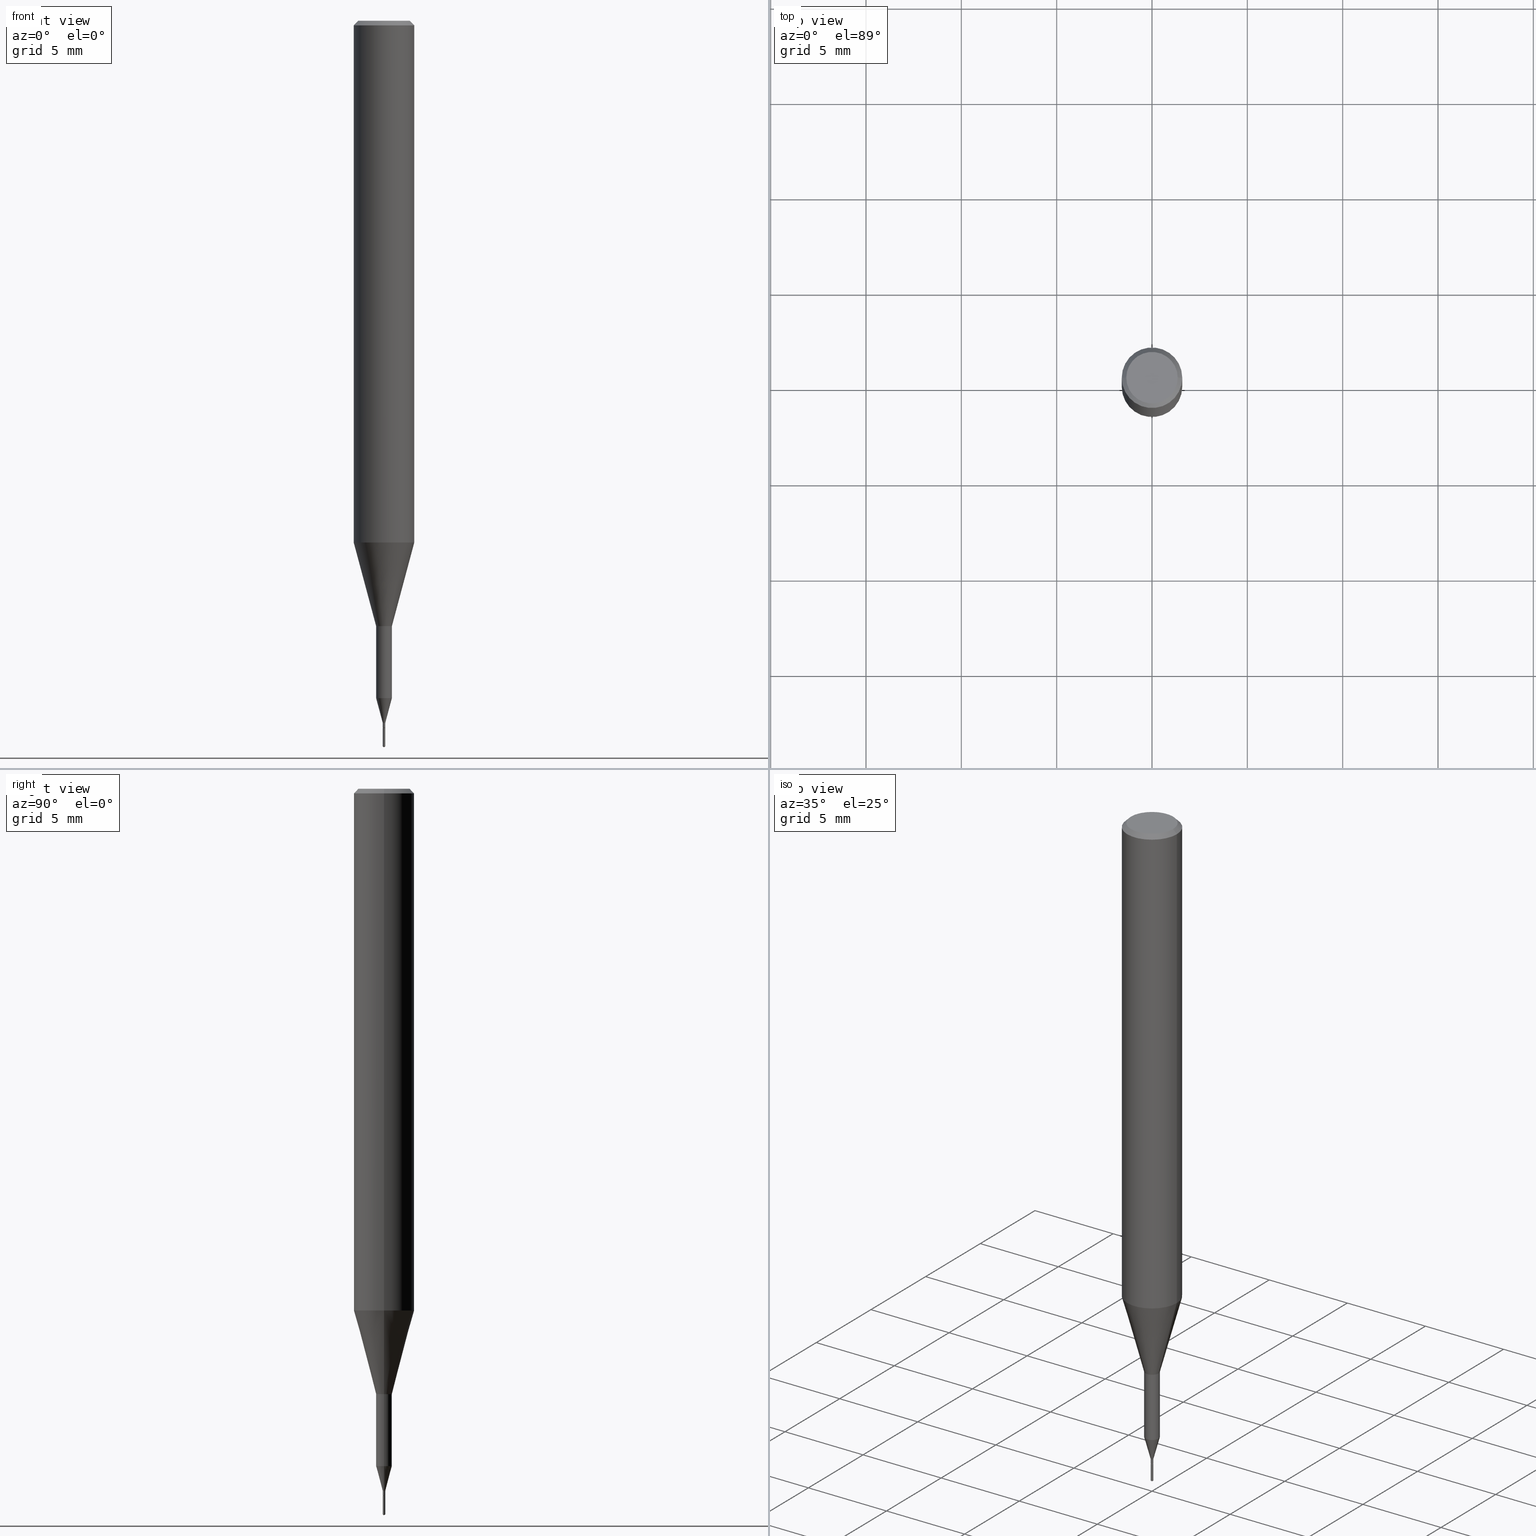
[diagram: canonical four-view strip — front | top / right | iso, engineering-drawing reading convention]
A machine part, canonical four-view strip (front | top / right | iso — engineering-drawing reading convention). The complete STEP part file that produces these views, byte-faithful:
ISO-10303-21;
HEADER;
FILE_DESCRIPTION (( 'STEP AP203' ),
    '1' );
FILE_NAME ('07066.STEP',
    '2024-04-19T13:29:27',
    ( '' ),
    ( '' ),
    'SwSTEP 2.0',
    'SolidWorks 2023',
    '' );
FILE_SCHEMA (( 'CONFIG_CONTROL_DESIGN' ));
ENDSEC;

DATA;
#1 = CIRCLE ( 'NONE', #228, 0.01625000000000000056 ) ;
#2 = CARTESIAN_POINT ( 'NONE',  ( 1.776356839403819481E-17, 0.002499999999994900832, -1.459999999999999964 ) ) ;
#3 = DIRECTION ( 'NONE',  ( -2.445468806185136597E-29, 3.491481338843145583E-15, 1.000000000000000000 ) ) ;
#4 = APPLICATION_PROTOCOL_DEFINITION ( 'international standard', 'config_control_design', 1994, #198 ) ;
#5 = ADVANCED_FACE ( 'NONE', ( #410 ), #317, .F. ) ;
#6 = VERTEX_POINT ( 'NONE', #547 ) ;
#7 = FACE_OUTER_BOUND ( 'NONE', #234, .T. ) ;
#8 = VERTEX_POINT ( 'NONE', #331 ) ;
#9 = CONICAL_SURFACE ( 'NONE', #120, 0.01625000000000000056, 0.2617993877991492413 ) ;
#10 = AXIS2_PLACEMENT_3D ( 'NONE', #489, #544, #63 ) ;
#11 = ADVANCED_FACE ( 'NONE', ( #144 ), #503, .F. ) ;
#12 = AXIS2_PLACEMENT_3D ( 'NONE', #341, #251, #564 ) ;
#13 = ORIENTED_EDGE ( 'NONE', *, *, #143, .F. ) ;
#14 = DATE_AND_TIME ( #197, #347 ) ;
#15 = DIRECTION ( 'NONE',  ( -2.445468806185136877E-29, 3.491481338843145188E-15, 1.000000000000000000 ) ) ;
#16 = AXIS2_PLACEMENT_3D ( 'NONE', #48, #491, #235 ) ;
#17 = EDGE_CURVE ( 'NONE', #294, #409, #252, .T. ) ;
#18 = DIRECTION ( 'NONE',  ( 1.000000000000000000, -6.982962677686336130E-15, 0.000000000000000000 ) ) ;
#19 = DIRECTION ( 'NONE',  ( 0.2588190451025205729, 1.565188264969628081E-15, 0.9659258262890684232 ) ) ;
#20 = DIRECTION ( 'NONE',  ( 0.2588190451025214611, 1.565188264969621573E-15, 0.9659258262890682012 ) ) ;
#21 = CARTESIAN_POINT ( 'NONE',  ( 3.570384457030299835E-29, -5.097562754710993158E-15, -1.459999999999999964 ) ) ;
#22 = COORDINATED_UNIVERSAL_TIME_OFFSET ( 5, 0, .BEHIND. ) ;
#23 = CARTESIAN_POINT ( 'NONE',  ( 3.420438828764592188E-29, -4.883480137256745077E-15, -1.398684301395928253 ) ) ;
#24 = EDGE_CURVE ( 'NONE', #319, #6, #567, .T. ) ;
#25 = VECTOR ( 'NONE', #26, 39.37007874015748854 ) ;
#26 = DIRECTION ( 'NONE',  ( 0.7071067811865454633, -7.319954787623246579E-15, -0.7071067811865493491 ) ) ;
#27 = LOCAL_TIME ( 9, 29, 27.00000000000000000, #420 ) ;
#28 = EDGE_CURVE ( 'NONE', #324, #279, #70, .T. ) ;
#29 = AXIS2_PLACEMENT_3D ( 'NONE', #349, #117, #342 ) ;
#30 = PERSON_AND_ORGANIZATION ( #326, #506 ) ;
#31 = VERTEX_POINT ( 'NONE', #81 ) ;
#32 = CARTESIAN_POINT ( 'NONE',  ( 3.570384457030299835E-29, -5.097562754710993158E-15, -1.459999999999999964 ) ) ;
#33 = CARTESIAN_POINT ( 'NONE',  ( 0.01625000000000000056, -4.996953280769146753E-15, -1.398684301395928253 ) ) ;
#34 = APPLICATION_PROTOCOL_DEFINITION ( 'international standard', 'config_control_design', 1994, #60 ) ;
#35 = LINE ( 'NONE', #539, #403 ) ;
#36 = ADVANCED_FACE ( 'NONE', ( #431 ), #213, .T. ) ;
#37 = DIRECTION ( 'NONE',  ( -2.445468806185136877E-29, 3.491481338843145188E-15, 1.000000000000000000 ) ) ;
#38 = AXIS2_PLACEMENT_3D ( 'NONE', #78, #350, #401 ) ;
#39 = ORIENTED_EDGE ( 'NONE', *, *, #455, .F. ) ;
#40 = CIRCLE ( 'NONE', #257, 0.002500000000000002220 ) ;
#41 = EDGE_CURVE ( 'NONE', #449, #8, #142, .T. ) ;
#42 = CARTESIAN_POINT ( 'NONE',  ( 3.644987076119493180E-29, -5.270468832327515999E-15, -1.500000000000000222 ) ) ;
#43 = ORIENTED_EDGE ( 'NONE', *, *, #28, .F. ) ;
#44 = EDGE_LOOP ( 'NONE', ( #454, #416 ) ) ;
#45 = LINE ( 'NONE', #412, #360 ) ;
#46 = COORDINATED_UNIVERSAL_TIME_OFFSET ( 5, 0, .BEHIND. ) ;
#47 = ORIENTED_EDGE ( 'NONE', *, *, #96, .T. ) ;
#48 = CARTESIAN_POINT ( 'NONE',  ( 2.292627005798580623E-31, -3.273263755165470184E-17, -0.009375000000000060368 ) ) ;
#49 = CC_DESIGN_PERSON_AND_ORGANIZATION_ASSIGNMENT ( #30, #214, ( #67 ) ) ;
#50 = ORIENTED_EDGE ( 'NONE', *, *, #154, .T. ) ;
#51 = CC_DESIGN_APPROVAL ( #56, ( #67 ) ) ;
#52 = VERTEX_POINT ( 'NONE', #124 ) ;
#53 = FACE_OUTER_BOUND ( 'NONE', #169, .T. ) ;
#54 = ORIENTED_EDGE ( 'NONE', *, *, #581, .T. ) ;
#55 = VERTEX_POINT ( 'NONE', #390 ) ;
#56 = APPROVAL ( #414, 'UNSPECIFIED' ) ;
#57 = EDGE_CURVE ( 'NONE', #409, #283, #205, .T. ) ;
#58 = DIRECTION ( 'NONE',  ( 1.000000000000000000, -6.982962677686267499E-15, 4.876176775795935793E-29 ) ) ;
#59 = EDGE_LOOP ( 'NONE', ( #582, #512, #590, #281 ) ) ;
#60 = APPLICATION_CONTEXT ( 'configuration controlled 3d designs of mechanical parts and assemblies' ) ;
#61 = VECTOR ( 'NONE', #185, 39.37007874015748143 ) ;
#62 = APPROVAL_PERSON_ORGANIZATION ( #466, #336, #299 ) ;
#63 = DIRECTION ( 'NONE',  ( 1.000000000000000000, -6.982962677686336130E-15, 0.000000000000000000 ) ) ;
#64 = AXIS2_PLACEMENT_3D ( 'NONE', #440, #391, #476 ) ;
#65 = FACE_OUTER_BOUND ( 'NONE', #172, .T. ) ;
#66 = ORIENTED_EDGE ( 'NONE', *, *, #163, .T. ) ;
#67 = PRODUCT_DEFINITION ( 'UNKNOWN', '', #291, #437 ) ;
#68 = EDGE_LOOP ( 'NONE', ( #195, #402, #313, #577 ) ) ;
#69 = EDGE_CURVE ( 'NONE', #270, #181, #40, .T. ) ;
#70 = LINE ( 'NONE', #357, #507 ) ;
#71 = CARTESIAN_POINT ( 'NONE',  ( 1.415359278996747967E-46, -2.020757941330909984E-32, -5.787680772770392401E-18 ) ) ;
#72 = VECTOR ( 'NONE', #530, 39.37007874015748143 ) ;
#73 = FACE_OUTER_BOUND ( 'NONE', #378, .T. ) ;
#74 = CARTESIAN_POINT ( 'NONE',  ( -1.745740669417899769E-17, -0.002500000000005228942, -1.498497848452431169 ) ) ;
#75 = PERSON_AND_ORGANIZATION ( #326, #506 ) ;
#76 = CC_DESIGN_PERSON_AND_ORGANIZATION_ASSIGNMENT ( #481, #501, ( #291 ) ) ;
#77 = CARTESIAN_POINT ( 'NONE',  ( -0.002500000000000021736, 1.776356839400265909E-17, -1.229733772563737297E-31 ) ) ;
#78 = CARTESIAN_POINT ( 'NONE',  ( 7.076796394983739835E-47, -1.010378970665454992E-32, -2.893840386385196200E-18 ) ) ;
#79 = CALENDAR_DATE ( 2024, 19, 4 ) ;
#80 = DIRECTION ( 'NONE',  ( 1.000000000000000000, -6.982962677686266711E-15, 4.875930095424100059E-29 ) ) ;
#81 = CARTESIAN_POINT ( 'NONE',  ( -0.01625000000000000056, -4.768016942695728892E-15, -1.398684301395928253 ) ) ;
#82 = CIRCLE ( 'NONE', #106, 0.01625000000000000056 ) ;
#83 = ORIENTED_EDGE ( 'NONE', *, *, #579, .F. ) ;
#84 = PERSON_AND_ORGANIZATION ( #326, #506 ) ;
#85 = ADVANCED_FACE ( 'NONE', ( #158 ), #9, .T. ) ;
#86 = CARTESIAN_POINT ( 'NONE',  ( -0.06250000000000000000, 4.037025298037369984E-16, -0.009375000000000060368 ) ) ;
#87 = PRODUCT ( '07066', '07066', '', ( #545 ) ) ;
#88 = DIRECTION ( 'NONE',  ( 1.000000000000000000, -6.982962677686265922E-15, 4.876176775795935232E-29 ) ) ;
#89 = DIRECTION ( 'NONE',  ( -2.461818195733173075E-29, 3.468068082460894112E-15, 1.000000000000000000 ) ) ;
#90 = AXIS2_PLACEMENT_3D ( 'NONE', #418, #3, #332 ) ;
#91 = ORIENTED_EDGE ( 'NONE', *, *, #467, .F. ) ;
#92 = CYLINDRICAL_SURFACE ( 'NONE', #557, 0.002500000000000021736 ) ;
#93 = PERSON_AND_ORGANIZATION ( #326, #506 ) ;
#94 = EDGE_LOOP ( 'NONE', ( #108, #460, #532, #521 ) ) ;
#95 = ORIENTED_EDGE ( 'NONE', *, *, #290, .F. ) ;
#96 = EDGE_CURVE ( 'NONE', #552, #31, #82, .T. ) ;
#97 = CARTESIAN_POINT ( 'NONE',  ( -0.001999999999999999174, -5.083351899995791142E-15, -1.459999999999999964 ) ) ;
#98 = ADVANCED_FACE ( 'NONE', ( #73 ), #451, .T. ) ;
#99 = SECURITY_CLASSIFICATION_LEVEL ( 'unclassified' ) ;
#100 = ORIENTED_EDGE ( 'NONE', *, *, #514, .T. ) ;
#101 = CARTESIAN_POINT ( 'NONE',  ( 3.570384457030299835E-29, -5.097562754710993158E-15, -1.459999999999999964 ) ) ;
#102 = DIRECTION ( 'NONE',  ( -2.461818195733173075E-29, 3.468068082460893717E-15, 1.000000000000000000 ) ) ;
#103 = ORIENTED_EDGE ( 'NONE', *, *, #424, .T. ) ;
#104 = CIRCLE ( 'NONE', #10, 0.001999999999999999174 ) ;
#105 = ORIENTED_EDGE ( 'NONE', *, *, #69, .F. ) ;
#106 = AXIS2_PLACEMENT_3D ( 'NONE', #23, #206, #569 ) ;
#107 = EDGE_CURVE ( 'NONE', #324, #546, #200, .T. ) ;
#108 = ORIENTED_EDGE ( 'NONE', *, *, #203, .F. ) ;
#109 = CARTESIAN_POINT ( 'NONE',  ( 0.000000000000000000, 0.000000000000000000, 0.000000000000000000 ) ) ;
#110 = VERTEX_POINT ( 'NONE', #436 ) ;
#111 = ORIENTED_EDGE ( 'NONE', *, *, #17, .T. ) ;
#112 = AXIS2_PLACEMENT_3D ( 'NONE', #354, #225, #315 ) ;
#113 = ORIENTED_EDGE ( 'NONE', *, *, #375, .F. ) ;
#114 = EDGE_CURVE ( 'NONE', #546, #324, #556, .T. ) ;
#115 = CARTESIAN_POINT ( 'NONE',  ( 3.056836007731421306E-29, -4.364351673553932471E-15, -1.250000000000000000 ) ) ;
#116 = DIRECTION ( 'NONE',  ( -2.445468806185136597E-29, 3.491481338843145583E-15, 1.000000000000000000 ) ) ;
#117 = DIRECTION ( 'NONE',  ( -2.445468806185136597E-29, 3.491481338843145583E-15, 1.000000000000000000 ) ) ;
#118 = AXIS2_PLACEMENT_3D ( 'NONE', #21, #392, #397 ) ;
#119 = CARTESIAN_POINT ( 'NONE',  ( 0.002500000000000002220, -5.113274420735787479E-15, -1.459500000000000020 ) ) ;
#120 = AXIS2_PLACEMENT_3D ( 'NONE', #434, #473, #400 ) ;
#121 = ADVANCED_FACE ( 'NONE', ( #303 ), #427, .T. ) ;
#122 = CARTESIAN_POINT ( 'NONE',  ( 2.292627005798580623E-31, -3.273263755165470184E-17, -0.009375000000000060368 ) ) ;
#123 = CARTESIAN_POINT ( 'NONE',  ( -0.001999999999999999174, -5.080702672821679941E-15, -1.459999999999999964 ) ) ;
#124 = CARTESIAN_POINT ( 'NONE',  ( 3.692727293599759753E-29, -5.202102123691340773E-15, -1.500000000000000222 ) ) ;
#125 = DIRECTION ( 'NONE',  ( 1.000000000000000000, -6.982962677686264344E-15, 0.000000000000000000 ) ) ;
#126 = EDGE_LOOP ( 'NONE', ( #179, #180, #513, #140 ) ) ;
#127 = LENGTH_MEASURE_WITH_UNIT ( LENGTH_MEASURE( 0.02539999999999999897 ), #355 );
#128 = CARTESIAN_POINT ( 'NONE',  ( 3.569161722627207033E-29, -5.095817014041571654E-15, -1.459500000000000020 ) ) ;
#129 = CIRCLE ( 'NONE', #555, 0.05312499999999999861 ) ;
#130 = FACE_OUTER_BOUND ( 'NONE', #498, .T. ) ;
#131 = CC_DESIGN_APPROVAL ( #533, ( #291 ) ) ;
#132 = CIRCLE ( 'NONE', #465, 0.002499999999999997884 ) ;
#133 = CYLINDRICAL_SURFACE ( 'NONE', #112, 0.06250000000000006939 ) ;
#134 = ORIENTED_EDGE ( 'NONE', *, *, #542, .F. ) ;
#135 = DIRECTION ( 'NONE',  ( -0.7071067811866210695, 7.493145998870619217E-15, 0.7071067811864739650 ) ) ;
#136 = EDGE_LOOP ( 'NONE', ( #554, #468, #325, #43 ) ) ;
#137 = CARTESIAN_POINT ( 'NONE',  ( -0.002500000000000002220, -5.078053445647568740E-15, -1.459500000000000020 ) ) ;
#138 = DIRECTION ( 'NONE',  ( 1.000000000000000000, -6.982962677686265922E-15, 4.876176775795935232E-29 ) ) ;
#139 = APPROVAL_DATE_TIME ( #223, #56 ) ;
#140 = ORIENTED_EDGE ( 'NONE', *, *, #57, .T. ) ;
#141 = EDGE_LOOP ( 'NONE', ( #573, #66, #13, #446 ) ) ;
#142 = CIRCLE ( 'NONE', #305, 0.002499999999999998751 ) ;
#143 = EDGE_CURVE ( 'NONE', #110, #519, #153, .T. ) ;
#144 = FACE_OUTER_BOUND ( 'NONE', #439, .T. ) ;
#145 = DIRECTION ( 'NONE',  ( -2.445468806185136597E-29, 3.491481338843145583E-15, 1.000000000000000000 ) ) ;
#146 = APPROVAL_ROLE ( '' ) ;
#147 = ORIENTED_EDGE ( 'NONE', *, *, #375, .T. ) ;
#148 = CYLINDRICAL_SURFACE ( 'NONE', #477, 0.002499999999999998317 ) ;
#149 = EDGE_LOOP ( 'NONE', ( #39, #147, #287 ) ) ;
#150 = CARTESIAN_POINT ( 'NONE',  ( 3.570384457030299835E-29, -5.097562754710993158E-15, -1.459999999999999964 ) ) ;
#151 = SHAPE_DEFINITION_REPRESENTATION ( #376, #209 ) ;
#152 = ORIENTED_EDGE ( 'NONE', *, *, #41, .F. ) ;
#153 = CIRCLE ( 'NONE', #517, 0.002500000000000041685 ) ;
#154 = EDGE_CURVE ( 'NONE', #55, #270, #353, .T. ) ;
#155 = LINE ( 'NONE', #2, #215 ) ;
#156 = AXIS2_PLACEMENT_3D ( 'NONE', #548, #102, #500 ) ;
#157 = CIRCLE ( 'NONE', #298, 0.002500000000000041685 ) ;
#158 = FACE_OUTER_BOUND ( 'NONE', #94, .T. ) ;
#159 = ORIENTED_EDGE ( 'NONE', *, *, #343, .T. ) ;
#160 = CARTESIAN_POINT ( 'NONE',  ( 1.415359278996747967E-46, -2.020757941330909984E-32, -5.787680772770392401E-18 ) ) ;
#161 = DIRECTION ( 'NONE',  ( 1.000000000000000000, -6.982962677686410283E-15, 0.000000000000000000 ) ) ;
#162 = CARTESIAN_POINT ( 'NONE',  ( 0.06250000000000012490, -4.198131499960668153E-15, -1.077392650149939346 ) ) ;
#163 = EDGE_CURVE ( 'NONE', #181, #519, #479, .T. ) ;
#164 = DIRECTION ( 'NONE',  ( 0.7071067811866210695, -2.468850131083026989E-15, 0.7071067811864739650 ) ) ;
#165 = CIRCLE ( 'NONE', #487, 0.06250000000000012490 ) ;
#166 = CALENDAR_DATE ( 2024, 19, 4 ) ;
#167 = CYLINDRICAL_SURFACE ( 'NONE', #280, 0.01625000000000000056 ) ;
#168 = DIRECTION ( 'NONE',  ( -2.461818195733173075E-29, 3.468068082460893717E-15, 1.000000000000000000 ) ) ;
#169 = EDGE_LOOP ( 'NONE', ( #47, #54, #550, #91 ) ) ;
#170 = CARTESIAN_POINT ( 'NONE',  ( 3.545929768968448850E-29, -5.062647941322561509E-15, -1.450000000000000178 ) ) ;
#171 = DIRECTION ( 'NONE',  ( 1.000000000000000000, -6.982962677686410283E-15, 0.000000000000000000 ) ) ;
#172 = EDGE_LOOP ( 'NONE', ( #540, #583, #421, #302 ) ) ;
#173 = ADVANCED_FACE ( 'NONE', ( #216 ), #167, .T. ) ;
#174 = VECTOR ( 'NONE', #524, 39.37007874015747433 ) ;
#175 = CARTESIAN_POINT ( 'NONE',  ( 3.570384457030299835E-29, -5.097562754710993158E-15, -1.459999999999999964 ) ) ;
#176 = CARTESIAN_POINT ( 'NONE',  ( 3.665159160847072839E-29, -5.231075914172285072E-15, -1.498497848452431169 ) ) ;
#177 = AXIS2_PLACEMENT_3D ( 'NONE', #388, #344, #560 ) ;
#178 = LINE ( 'NONE', #461, #199 ) ;
#179 = ORIENTED_EDGE ( 'NONE', *, *, #311, .F. ) ;
#180 = ORIENTED_EDGE ( 'NONE', *, *, #356, .F. ) ;
#181 = VERTEX_POINT ( 'NONE', #137 ) ;
#182 = LINE ( 'NONE', #86, #393 ) ;
#183 = CC_DESIGN_DATE_AND_TIME_ASSIGNMENT ( #588, #352, ( #67 ) ) ;
#184 = ORIENTED_EDGE ( 'NONE', *, *, #24, .F. ) ;
#185 = DIRECTION ( 'NONE',  ( -2.445468806185136877E-29, 3.491481338843145188E-15, 1.000000000000000000 ) ) ;
#186 = DIRECTION ( 'NONE',  ( -2.445468806185136877E-29, 3.491481338843145188E-15, 1.000000000000000000 ) ) ;
#187 = CONICAL_SURFACE ( 'NONE', #492, 0.06250000000000012490, 0.2617993877991501295 ) ;
#188 = ORIENTED_EDGE ( 'NONE', *, *, #508, .T. ) ;
#189 = AXIS2_PLACEMENT_3D ( 'NONE', #32, #258, #18 ) ;
#190 = CARTESIAN_POINT ( 'NONE',  ( -0.06250000000000000000, -1.453125275228401137E-15, -0.009375000000000060368 ) ) ;
#191 = EDGE_LOOP ( 'NONE', ( #329, #381, #152, #239 ) ) ;
#192 = CC_DESIGN_DATE_AND_TIME_ASSIGNMENT ( #219, #380, ( #361 ) ) ;
#193 = DIRECTION ( 'NONE',  ( -2.445468806185136597E-29, 3.491481338843145583E-15, 1.000000000000000000 ) ) ;
#194 = COORDINATED_UNIVERSAL_TIME_OFFSET ( 5, 0, .BEHIND. ) ;
#195 = ORIENTED_EDGE ( 'NONE', *, *, #581, .F. ) ;
#196 = CARTESIAN_POINT ( 'NONE',  ( 0.01625000000000000056, -4.996953280769146753E-15, -1.398684301395928253 ) ) ;
#197 = CALENDAR_DATE ( 2024, 19, 4 ) ;
#198 = APPLICATION_CONTEXT ( 'configuration controlled 3d designs of mechanical parts and assemblies' ) ;
#199 = VECTOR ( 'NONE', #37, 39.37007874015748143 ) ;
#200 = CIRCLE ( 'NONE', #29, 0.01624999999999999709 ) ;
#201 = ORIENTED_EDGE ( 'NONE', *, *, #430, .F. ) ;
#202 = DIRECTION ( 'NONE',  ( -2.445468806185136597E-29, 3.491481338843145583E-15, 1.000000000000000000 ) ) ;
#203 = EDGE_CURVE ( 'NONE', #519, #31, #274, .T. ) ;
#204 = CARTESIAN_POINT ( 'NONE',  ( -0.05312499999999999861, 3.873362110279099094E-16, -5.787680772773044021E-18 ) ) ;
#205 = CIRCLE ( 'NONE', #395, 0.06250000000000000000 ) ;
#206 = DIRECTION ( 'NONE',  ( -2.445468806185136597E-29, 3.491481338843145583E-15, 1.000000000000000000 ) ) ;
#207 = EDGE_LOOP ( 'NONE', ( #134, #374 ) ) ;
#208 = DIRECTION ( 'NONE',  ( -2.445468806185136597E-29, 3.491481338843145583E-15, 1.000000000000000000 ) ) ;
#209 = ADVANCED_BREP_SHAPE_REPRESENTATION ( '07066', ( #247, #243, #589 ), #267 ) ;
#210 = EDGE_CURVE ( 'NONE', #8, #449, #578, .T. ) ;
#211 = DIRECTION ( 'NONE',  ( -2.445468806185136597E-29, 3.491481338843145583E-15, 1.000000000000000000 ) ) ;
#212 = FACE_OUTER_BOUND ( 'NONE', #44, .T. ) ;
#213 = CYLINDRICAL_SURFACE ( 'NONE', #64, 0.06250000000000006939 ) ;
#214 = PERSON_AND_ORGANIZATION_ROLE ( 'creator' ) ;
#215 = VECTOR ( 'NONE', #411, 39.37007874015748143 ) ;
#216 = FACE_OUTER_BOUND ( 'NONE', #68, .T. ) ;
#217 = FACE_OUTER_BOUND ( 'NONE', #453, .T. ) ;
#218 = CONICAL_SURFACE ( 'NONE', #495, 65.52281426576490730, 1.029744258676630775 ) ;
#219 = DATE_AND_TIME ( #79, #27 ) ;
#220 = VERTEX_POINT ( 'NONE', #204 ) ;
#221 = DIRECTION ( 'NONE',  ( -2.445468806185136597E-29, 3.491481338843145583E-15, 1.000000000000000000 ) ) ;
#222 = CARTESIAN_POINT ( 'NONE',  ( 3.545929768968448850E-29, -5.062647941322561509E-15, -1.450000000000000178 ) ) ;
#223 = DATE_AND_TIME ( #568, #485 ) ;
#224 = EDGE_CURVE ( 'NONE', #31, #552, #1, .T. ) ;
#225 = DIRECTION ( 'NONE',  ( -2.445468806185136597E-29, 3.491481338843145583E-15, 1.000000000000000000 ) ) ;
#226 = VECTOR ( 'NONE', #89, 39.37007874015748143 ) ;
#227 = CARTESIAN_POINT ( 'NONE',  ( 0.000000000000000000, 0.000000000000000000, 0.000000000000000000 ) ) ;
#228 = AXIS2_PLACEMENT_3D ( 'NONE', #309, #482, #256 ) ;
#229 = EDGE_CURVE ( 'NONE', #316, #220, #386, .T. ) ;
#230 = DIRECTION ( 'NONE',  ( -1.000000000000000000, 6.982962677686266711E-15, 0.000000000000000000 ) ) ;
#231 = ADVANCED_FACE ( 'NONE', ( #266 ), #218, .T. ) ;
#232 = ORIENTED_EDGE ( 'NONE', *, *, #362, .T. ) ;
#233 = DIRECTION ( 'NONE',  ( -2.445468806185136597E-29, 3.491481338843145583E-15, 1.000000000000000000 ) ) ;
#234 = EDGE_LOOP ( 'NONE', ( #335, #103, #159, #537 ) ) ;
#235 = DIRECTION ( 'NONE',  ( -1.000000000000000000, 6.982962677686266711E-15, 0.000000000000000000 ) ) ;
#236 = AXIS2_PLACEMENT_3D ( 'NONE', #464, #145, #138 ) ;
#237 = PERSON_AND_ORGANIZATION ( #326, #506 ) ;
#238 = CONICAL_SURFACE ( 'NONE', #276, 0.001999999999999999174, 0.7853981633975523069 ) ;
#239 = ORIENTED_EDGE ( 'NONE', *, *, #514, .F. ) ;
#240 = DIRECTION ( 'NONE',  ( -2.445468806185136597E-29, 3.491481338843145583E-15, 1.000000000000000000 ) ) ;
#241 = EDGE_CURVE ( 'NONE', #279, #294, #165, .T. ) ;
#242 = ORIENTED_EDGE ( 'NONE', *, *, #275, .T. ) ;
#243 = MANIFOLD_SOLID_BREP ( 'Body-Move/Copy2[2]', #323 ) ;
#244 = ADVANCED_FACE ( 'NONE', ( #295 ), #419, .T. ) ;
#245 = VERTEX_POINT ( 'NONE', #123 ) ;
#246 = CONICAL_SURFACE ( 'NONE', #565, 65.52281426576490730, 1.029744258676630775 ) ;
#247 = MANIFOLD_SOLID_BREP ( 'Body-Move/Copy2[1]', #538 ) ;
#248 = CC_DESIGN_PERSON_AND_ORGANIZATION_ASSIGNMENT ( #286, #462, ( #361 ) ) ;
#249 = EDGE_CURVE ( 'NONE', #519, #110, #157, .T. ) ;
#250 = DIRECTION ( 'NONE',  ( 6.982962677686265922E-15, 1.000000000000000000, -3.468068082460894112E-15 ) ) ;
#251 = DIRECTION ( 'NONE',  ( -2.461818195733173075E-29, 3.468068082460893717E-15, 1.000000000000000000 ) ) ;
#252 = LINE ( 'NONE', #534, #363 ) ;
#253 = DIRECTION ( 'NONE',  ( 1.000000000000000000, -6.982962677686264344E-15, 0.000000000000000000 ) ) ;
#254 = PRODUCT_RELATED_PRODUCT_CATEGORY ( 'detail', '', ( #87 ) ) ;
#255 = LOCAL_TIME ( 9, 29, 27.00000000000000000, #394 ) ;
#256 = DIRECTION ( 'NONE',  ( 1.000000000000000000, -6.982962677686258033E-15, 0.000000000000000000 ) ) ;
#257 = AXIS2_PLACEMENT_3D ( 'NONE', #128, #221, #528 ) ;
#258 = DIRECTION ( 'NONE',  ( -2.445468806185136597E-29, 3.491481338843145583E-15, 1.000000000000000000 ) ) ;
#259 = DIRECTION ( 'NONE',  ( 1.000000000000000000, -6.982962677686266711E-15, 0.000000000000000000 ) ) ;
#260 = DIRECTION ( 'NONE',  ( -2.445468806185136597E-29, 3.491481338843145583E-15, 1.000000000000000000 ) ) ;
#261 = DIRECTION ( 'NONE',  ( 0.000000000000000000, 0.000000000000000000, 1.000000000000000000 ) ) ;
#262 = DIMENSIONAL_EXPONENTS ( 1.000000000000000000, 0.000000000000000000, 0.000000000000000000, 0.000000000000000000, 0.000000000000000000, 0.000000000000000000, 0.000000000000000000 ) ;
#263 = DIRECTION ( 'NONE',  ( -2.445468806185136877E-29, 3.491481338843145188E-15, 1.000000000000000000 ) ) ;
#264 = CARTESIAN_POINT ( 'NONE',  ( 0.06250000000000000000, -4.691678049070463404E-16, -0.009375000000000060368 ) ) ;
#265 = PERSON_AND_ORGANIZATION_ROLE ( 'creator' ) ;
#266 = FACE_OUTER_BOUND ( 'NONE', #300, .T. ) ;
#267 =( GEOMETRIC_REPRESENTATION_CONTEXT ( 3 ) GLOBAL_UNCERTAINTY_ASSIGNED_CONTEXT ( ( #358 ) ) GLOBAL_UNIT_ASSIGNED_CONTEXT ( ( #574, #322, #271 ) ) REPRESENTATION_CONTEXT ( 'NONE', 'WORKASPACE' ) );
#268 = DIRECTION ( 'NONE',  ( 1.000000000000000000, -6.982962677686288799E-15, 0.000000000000000000 ) ) ;
#269 = ADVANCED_FACE ( 'NONE', ( #217 ), #238, .T. ) ;
#270 = VERTEX_POINT ( 'NONE', #119 ) ;
#271 =( NAMED_UNIT ( * ) SI_UNIT ( $, .STERADIAN. ) SOLID_ANGLE_UNIT ( ) );
#272 = DIRECTION ( 'NONE',  ( -2.461818195733173075E-29, 3.468068082460893717E-15, 1.000000000000000000 ) ) ;
#273 = LINE ( 'NONE', #42, #346 ) ;
#274 = LINE ( 'NONE', #499, #72 ) ;
#275 = EDGE_CURVE ( 'NONE', #6, #319, #132, .T. ) ;
#276 = AXIS2_PLACEMENT_3D ( 'NONE', #535, #445, #359 ) ;
#277 = AXIS2_PLACEMENT_3D ( 'NONE', #408, #193, #379 ) ;
#278 = FACE_OUTER_BOUND ( 'NONE', #126, .T. ) ;
#279 = VERTEX_POINT ( 'NONE', #162 ) ;
#280 = AXIS2_PLACEMENT_3D ( 'NONE', #310, #483, #88 ) ;
#281 = ORIENTED_EDGE ( 'NONE', *, *, #458, .F. ) ;
#282 = DIRECTION ( 'NONE',  ( -6.982962677686266711E-15, -1.000000000000000000, 0.000000000000000000 ) ) ;
#283 = VERTEX_POINT ( 'NONE', #264 ) ;
#284 = ORIENTED_EDGE ( 'NONE', *, *, #488, .F. ) ;
#285 = FACE_OUTER_BOUND ( 'NONE', #59, .T. ) ;
#286 = PERSON_AND_ORGANIZATION ( #326, #506 ) ;
#287 = ORIENTED_EDGE ( 'NONE', *, *, #275, .F. ) ;
#288 = ORIENTED_EDGE ( 'NONE', *, *, #203, .T. ) ;
#289 = CARTESIAN_POINT ( 'NONE',  ( 2.292627005798580623E-31, -3.273263755165470184E-17, -0.009375000000000060368 ) ) ;
#290 = EDGE_CURVE ( 'NONE', #110, #552, #345, .T. ) ;
#291 = PRODUCT_DEFINITION_FORMATION_WITH_SPECIFIED_SOURCE ( 'ANY', '', #87, .NOT_KNOWN. ) ;
#292 = AXIS2_PLACEMENT_3D ( 'NONE', #101, #490, #456 ) ;
#293 = ORIENTED_EDGE ( 'NONE', *, *, #143, .T. ) ;
#294 = VERTEX_POINT ( 'NONE', #480 ) ;
#295 = FACE_OUTER_BOUND ( 'NONE', #136, .T. ) ;
#296 = ADVANCED_FACE ( 'NONE', ( #212 ), #312, .F. ) ;
#297 = CIRCLE ( 'NONE', #90, 0.06250000000000012490 ) ;
#298 = AXIS2_PLACEMENT_3D ( 'NONE', #222, #562, #171 ) ;
#299 = APPROVAL_ROLE ( '' ) ;
#300 = EDGE_LOOP ( 'NONE', ( #113, #486, #184 ) ) ;
#301 = EDGE_CURVE ( 'NONE', #546, #294, #441, .T. ) ;
#302 = ORIENTED_EDGE ( 'NONE', *, *, #508, .F. ) ;
#303 = FACE_OUTER_BOUND ( 'NONE', #333, .T. ) ;
#304 = DIRECTION ( 'NONE',  ( -6.982962677686266711E-15, -1.000000000000000000, 3.468864327941780780E-15 ) ) ;
#305 = AXIS2_PLACEMENT_3D ( 'NONE', #523, #478, #520 ) ;
#306 = LINE ( 'NONE', #575, #25 ) ;
#307 = CARTESIAN_POINT ( 'NONE',  ( 0.001999999999999999174, -5.111528680066365187E-15, -1.459999999999999964 ) ) ;
#308 = DATE_AND_TIME ( #529, #576 ) ;
#309 = CARTESIAN_POINT ( 'NONE',  ( 3.420438828764592188E-29, -4.883480137256745077E-15, -1.398684301395928253 ) ) ;
#310 = CARTESIAN_POINT ( 'NONE',  ( 0.000000000000000000, 0.000000000000000000, 0.000000000000000000 ) ) ;
#311 = EDGE_CURVE ( 'NONE', #316, #283, #306, .T. ) ;
#312 = PLANE ( 'NONE',  #38 ) ;
#313 = ORIENTED_EDGE ( 'NONE', *, *, #467, .T. ) ;
#314 = CARTESIAN_POINT ( 'NONE',  ( 0.000000000000000000, 0.000000000000000000, 0.000000000000000000 ) ) ;
#315 = DIRECTION ( 'NONE',  ( 1.000000000000000000, -6.982962677686266711E-15, 4.876176775795935793E-29 ) ) ;
#316 = VERTEX_POINT ( 'NONE', #365 ) ;
#317 = PLANE ( 'NONE',  #292 ) ;
#318 = FACE_OUTER_BOUND ( 'NONE', #330, .T. ) ;
#319 = VERTEX_POINT ( 'NONE', #74 ) ;
#320 = AXIS2_PLACEMENT_3D ( 'NONE', #553, #240, #580 ) ;
#321 = DIRECTION ( 'NONE',  ( -0.7071067811865454633, 2.468850131082235761E-15, -0.7071067811865493491 ) ) ;
#322 =( NAMED_UNIT ( * ) PLANE_ANGLE_UNIT ( ) SI_UNIT ( $, .RADIAN. ) );
#323 = CLOSED_SHELL ( 'NONE', ( #494, #36, #244, #382, #98, #559, #269, #5, #121, #406, #85, #173, #563, #351, #515, #296 ) ) ;
#324 = VERTEX_POINT ( 'NONE', #572 ) ;
#325 = ORIENTED_EDGE ( 'NONE', *, *, #241, .F. ) ;
#326 = PERSON ( 'UNSPECIFIED', 'UNSPECIFIED', 'UNSPECIFIED', ('UNSPECIFIED'), ('UNSPECIFIED'), ('UNSPECIFIED') ) ;
#327 = CYLINDRICAL_SURFACE ( 'NONE', #156, 0.002499999999999998317 ) ;
#328 = APPROVAL_DATE_TIME ( #308, #533 ) ;
#329 = ORIENTED_EDGE ( 'NONE', *, *, #24, .T. ) ;
#330 = EDGE_LOOP ( 'NONE', ( #83, #242, #100, #502 ) ) ;
#331 = CARTESIAN_POINT ( 'NONE',  ( 1.776356839403914699E-17, 0.002499999999994901266, -1.459999999999999964 ) ) ;
#332 = DIRECTION ( 'NONE',  ( 1.000000000000000000, -6.982962677686264344E-15, 0.000000000000000000 ) ) ;
#333 = EDGE_LOOP ( 'NONE', ( #284, #232, #50, #509 ) ) ;
#334 = VECTOR ( 'NONE', #186, 39.37007874015748143 ) ;
#335 = ORIENTED_EDGE ( 'NONE', *, *, #163, .F. ) ;
#336 = APPROVAL ( #429, 'UNSPECIFIED' ) ;
#337 = DIRECTION ( 'NONE',  ( -2.445468806185136597E-29, 3.491481338843145583E-15, 1.000000000000000000 ) ) ;
#338 = CIRCLE ( 'NONE', #277, 0.06250000000000000000 ) ;
#339 = VECTOR ( 'NONE', #19, 39.37007874015748143 ) ;
#340 = FACE_OUTER_BOUND ( 'NONE', #141, .T. ) ;
#341 = CARTESIAN_POINT ( 'NONE',  ( 3.570384457030299835E-29, -5.097562754710993158E-15, -1.459999999999999964 ) ) ;
#342 = DIRECTION ( 'NONE',  ( 1.000000000000000000, -6.982962677686288799E-15, 0.000000000000000000 ) ) ;
#343 = EDGE_CURVE ( 'NONE', #270, #110, #35, .T. ) ;
#344 = DIRECTION ( 'NONE',  ( -2.445468806185136597E-29, 3.491481338843145583E-15, 1.000000000000000000 ) ) ;
#345 = LINE ( 'NONE', #33, #339 ) ;
#346 = VECTOR ( 'NONE', #450, 39.37007874015748143 ) ;
#347 = LOCAL_TIME ( 9, 29, 27.00000000000000000, #194 ) ;
#348 = AXIS2_PLACEMENT_3D ( 'NONE', #160, #208, #80 ) ;
#349 = CARTESIAN_POINT ( 'NONE',  ( 3.056836007731421306E-29, -4.364351673553932471E-15, -1.250000000000000000 ) ) ;
#350 = DIRECTION ( 'NONE',  ( 2.438088387897960049E-29, -3.491481338843145188E-15, -1.000000000000000000 ) ) ;
#351 = ADVANCED_FACE ( 'NONE', ( #130 ), #133, .T. ) ;
#352 = DATE_TIME_ROLE ( 'creation_date' ) ;
#353 = LINE ( 'NONE', #307, #472 ) ;
#354 = CARTESIAN_POINT ( 'NONE',  ( 0.000000000000000000, 0.000000000000000000, 0.000000000000000000 ) ) ;
#355 =( LENGTH_UNIT ( ) NAMED_UNIT ( * ) SI_UNIT ( $, .METRE. ) );
#356 = EDGE_CURVE ( 'NONE', #220, #316, #129, .T. ) ;
#357 = CARTESIAN_POINT ( 'NONE',  ( 0.06250000000000012490, -4.198131499960668153E-15, -1.077392650149939346 ) ) ;
#358 = UNCERTAINTY_MEASURE_WITH_UNIT (LENGTH_MEASURE( 1.000000000000000082E-05 ), #574, 'distance_accuracy_value', 'NONE');
#359 = DIRECTION ( 'NONE',  ( 1.000000000000000000, -6.982962677686336130E-15, 0.000000000000000000 ) ) ;
#360 = VECTOR ( 'NONE', #587, 39.37007874015748143 ) ;
#361 = SECURITY_CLASSIFICATION ( '', '', #99 ) ;
#362 = EDGE_CURVE ( 'NONE', #245, #55, #383, .T. ) ;
#363 = VECTOR ( 'NONE', #15, 39.37007874015748143 ) ;
#364 = DIRECTION ( 'NONE',  ( 2.461818195733172515E-29, -3.468068082460894112E-15, -1.000000000000000000 ) ) ;
#365 = CARTESIAN_POINT ( 'NONE',  ( 0.05312499999999999861, -4.129888592719939842E-16, -5.787680772767651417E-18 ) ) ;
#366 = CYLINDRICAL_SURFACE ( 'NONE', #236, 0.01625000000000000056 ) ;
#367 = ADVANCED_FACE ( 'NONE', ( #566 ), #246, .T. ) ;
#368 = ORIENTED_EDGE ( 'NONE', *, *, #488, .T. ) ;
#369 = ORIENTED_EDGE ( 'NONE', *, *, #17, .F. ) ;
#370 = CARTESIAN_POINT ( 'NONE',  ( -1.745740669417994678E-17, -0.002500000000005096236, -1.459999999999999964 ) ) ;
#371 = ORIENTED_EDGE ( 'NONE', *, *, #41, .T. ) ;
#372 = CARTESIAN_POINT ( 'NONE',  ( 2.634730117954813298E-29, -3.761696332605275695E-15, -1.077392650149939346 ) ) ;
#373 = DIRECTION ( 'NONE',  ( -6.982962677686266711E-15, -1.000000000000000000, 3.468864327941780780E-15 ) ) ;
#374 = ORIENTED_EDGE ( 'NONE', *, *, #362, .F. ) ;
#375 = EDGE_CURVE ( 'NONE', #52, #319, #273, .T. ) ;
#376 = PRODUCT_DEFINITION_SHAPE ( 'NONE', 'NONE',  #67 ) ;
#377 = CARTESIAN_POINT ( 'NONE',  ( 0.01625000000000000056, -1.134731435124018242E-16, 7.923787260668394963E-31 ) ) ;
#378 = EDGE_LOOP ( 'NONE', ( #293, #288, #543, #95 ) ) ;
#379 = DIRECTION ( 'NONE',  ( 1.000000000000000000, -6.982962677686266711E-15, 0.000000000000000000 ) ) ;
#380 = DATE_TIME_ROLE ( 'classification_date' ) ;
#381 = ORIENTED_EDGE ( 'NONE', *, *, #579, .T. ) ;
#382 = ADVANCED_FACE ( 'NONE', ( #53 ), #366, .T. ) ;
#383 = CIRCLE ( 'NONE', #118, 0.001999999999999999174 ) ;
#384 = AXIS2_PLACEMENT_3D ( 'NONE', #444, #531, #561 ) ;
#385 = DIRECTION ( 'NONE',  ( -2.445468806185136597E-29, 3.491481338843145583E-15, 1.000000000000000000 ) ) ;
#386 = CIRCLE ( 'NONE', #348, 0.05312499999999999861 ) ;
#387 = CC_DESIGN_PERSON_AND_ORGANIZATION_ASSIGNMENT ( #237, #265, ( #291 ) ) ;
#388 = CARTESIAN_POINT ( 'NONE',  ( 3.420438828764592188E-29, -4.883480137256745077E-15, -1.398684301395928253 ) ) ;
#389 = CARTESIAN_POINT ( 'NONE',  ( -9.325311902510782353E-28, 1.313018280047029287E-13, 37.87007874015748143 ) ) ;
#390 = CARTESIAN_POINT ( 'NONE',  ( 0.001999999999999999174, -5.111528680066365187E-15, -1.459999999999999964 ) ) ;
#391 = DIRECTION ( 'NONE',  ( -2.445468806185136597E-29, 3.491481338843145583E-15, 1.000000000000000000 ) ) ;
#392 = DIRECTION ( 'NONE',  ( -2.445468806185136597E-29, 3.491481338843145583E-15, 1.000000000000000000 ) ) ;
#393 = VECTOR ( 'NONE', #321, 39.37007874015748854 ) ;
#394 = COORDINATED_UNIVERSAL_TIME_OFFSET ( 5, 0, .BEHIND. ) ;
#395 = AXIS2_PLACEMENT_3D ( 'NONE', #122, #396, #259 ) ;
#396 = DIRECTION ( 'NONE',  ( -2.445468806185136597E-29, 3.491481338843145583E-15, 1.000000000000000000 ) ) ;
#397 = DIRECTION ( 'NONE',  ( 1.000000000000000000, -6.982962677686336130E-15, 0.000000000000000000 ) ) ;
#398 = PERSON_AND_ORGANIZATION_ROLE ( 'design_owner' ) ;
#399 = ORIENTED_EDGE ( 'NONE', *, *, #542, .T. ) ;
#400 = DIRECTION ( 'NONE',  ( 1.000000000000000000, -6.982962677686258033E-15, 0.000000000000000000 ) ) ;
#401 = DIRECTION ( 'NONE',  ( -1.000000000000000000, 6.982962677686265922E-15, -4.876176775795935793E-29 ) ) ;
#402 = ORIENTED_EDGE ( 'NONE', *, *, #224, .T. ) ;
#403 = VECTOR ( 'NONE', #484, 39.37007874015748143 ) ;
#404 = CC_DESIGN_APPROVAL ( #336, ( #361 ) ) ;
#405 = AXIS2_PLACEMENT_3D ( 'NONE', #428, #116, #125 ) ;
#406 = ADVANCED_FACE ( 'NONE', ( #7 ), #92, .T. ) ;
#407 = FACE_OUTER_BOUND ( 'NONE', #191, .T. ) ;
#408 = CARTESIAN_POINT ( 'NONE',  ( 2.292627005798580623E-31, -3.273263755165470184E-17, -0.009375000000000060368 ) ) ;
#409 = VERTEX_POINT ( 'NONE', #190 ) ;
#410 = FACE_OUTER_BOUND ( 'NONE', #207, .T. ) ;
#411 = DIRECTION ( 'NONE',  ( -2.461818195733173075E-29, 3.468068082460894112E-15, 1.000000000000000000 ) ) ;
#412 = CARTESIAN_POINT ( 'NONE',  ( 3.693145918954258114E-29, -5.202102123691339984E-15, -1.500000000000000222 ) ) ;
#413 = CC_DESIGN_PERSON_AND_ORGANIZATION_ASSIGNMENT ( #84, #398, ( #87 ) ) ;
#414 = APPROVAL_STATUS ( 'not_yet_approved' ) ;
#415 = ADVANCED_FACE ( 'NONE', ( #407 ), #148, .T. ) ;
#416 = ORIENTED_EDGE ( 'NONE', *, *, #229, .T. ) ;
#417 = APPROVAL_PERSON_ORGANIZATION ( #75, #56, #549 ) ;
#418 = CARTESIAN_POINT ( 'NONE',  ( 2.634730117954813298E-29, -3.761696332605275695E-15, -1.077392650149939346 ) ) ;
#419 = CONICAL_SURFACE ( 'NONE', #405, 0.06250000000000012490, 0.2617993877991501295 ) ;
#420 = COORDINATED_UNIVERSAL_TIME_OFFSET ( 5, 0, .BEHIND. ) ;
#421 = ORIENTED_EDGE ( 'NONE', *, *, #28, .T. ) ;
#422 = CARTESIAN_POINT ( 'NONE',  ( -0.002500000000000041685, -5.061468909288063272E-15, -1.450000000000000178 ) ) ;
#423 = ORIENTED_EDGE ( 'NONE', *, *, #154, .F. ) ;
#424 = EDGE_CURVE ( 'NONE', #181, #270, #442, .T. ) ;
#425 = AXIS2_PLACEMENT_3D ( 'NONE', #109, #202, #58 ) ;
#426 = APPROVAL_DATE_TIME ( #14, #336 ) ;
#427 = CONICAL_SURFACE ( 'NONE', #189, 0.001999999999999999174, 0.7853981633975523069 ) ;
#428 = CARTESIAN_POINT ( 'NONE',  ( 2.634730117954813298E-29, -3.761696332605275695E-15, -1.077392650149939346 ) ) ;
#429 = APPROVAL_STATUS ( 'not_yet_approved' ) ;
#430 = EDGE_CURVE ( 'NONE', #279, #283, #178, .T. ) ;
#431 = FACE_OUTER_BOUND ( 'NONE', #585, .T. ) ;
#432 = APPROVAL_PERSON_ORGANIZATION ( #93, #533, #146 ) ;
#433 = CC_DESIGN_SECURITY_CLASSIFICATION ( #361, ( #291 ) ) ;
#434 = CARTESIAN_POINT ( 'NONE',  ( 3.420438828764592188E-29, -4.883480137256745077E-15, -1.398684301395928253 ) ) ;
#435 = DIRECTION ( 'NONE',  ( -6.982962677686265133E-15, -1.000000000000000000, 0.000000000000000000 ) ) ;
#436 = CARTESIAN_POINT ( 'NONE',  ( 0.002500000000000041685, -5.080105348016777334E-15, -1.450000000000000178 ) ) ;
#437 = DESIGN_CONTEXT ( 'detailed design', #60, 'design' ) ;
#438 = DIRECTION ( 'NONE',  ( 1.000000000000000000, -6.982962677686266711E-15, 4.875930095424100059E-29 ) ) ;
#439 = EDGE_LOOP ( 'NONE', ( #371, #493 ) ) ;
#440 = CARTESIAN_POINT ( 'NONE',  ( 0.000000000000000000, 0.000000000000000000, 0.000000000000000000 ) ) ;
#441 = LINE ( 'NONE', #448, #174 ) ;
#442 = CIRCLE ( 'NONE', #320, 0.002500000000000002220 ) ;
#443 = AXIS2_PLACEMENT_3D ( 'NONE', #115, #571, #268 ) ;
#444 = CARTESIAN_POINT ( 'NONE',  ( 3.665159160847072839E-29, -5.231075914172285072E-15, -1.498497848452431169 ) ) ;
#445 = DIRECTION ( 'NONE',  ( -2.445468806185136597E-29, 3.491481338843145583E-15, 1.000000000000000000 ) ) ;
#446 = ORIENTED_EDGE ( 'NONE', *, *, #343, .F. ) ;
#447 = DIRECTION ( 'NONE',  ( 1.000000000000000000, 0.000000000000000000, 0.000000000000000000 ) ) ;
#448 = CARTESIAN_POINT ( 'NONE',  ( -0.06250000000000012490, -3.317607122755211895E-15, -1.077392650149939346 ) ) ;
#449 = VERTEX_POINT ( 'NONE', #457 ) ;
#450 = DIRECTION ( 'NONE',  ( -5.985567269335857660E-15, -0.8571673007020982338, 0.5150380749100774702 ) ) ;
#451 = CONICAL_SURFACE ( 'NONE', #177, 0.01625000000000000056, 0.2617993877991492413 ) ;
#452 = DIRECTION ( 'NONE',  ( 2.445468806185136597E-29, -3.491481338843145583E-15, -1.000000000000000000 ) ) ;
#453 = EDGE_LOOP ( 'NONE', ( #399, #368, #105, #423 ) ) ;
#454 = ORIENTED_EDGE ( 'NONE', *, *, #356, .T. ) ;
#455 = EDGE_CURVE ( 'NONE', #52, #6, #45, .T. ) ;
#456 = DIRECTION ( 'NONE',  ( 1.000000000000000000, -6.982962677686265922E-15, 4.876176775795935793E-29 ) ) ;
#457 = CARTESIAN_POINT ( 'NONE',  ( -1.745740669417995295E-17, -0.002500000000005096670, -1.459999999999999964 ) ) ;
#458 = EDGE_CURVE ( 'NONE', #220, #409, #182, .T. ) ;
#459 = APPROVAL_STATUS ( 'not_yet_approved' ) ;
#460 = ORIENTED_EDGE ( 'NONE', *, *, #249, .T. ) ;
#461 = CARTESIAN_POINT ( 'NONE',  ( 0.06250000000000006939, -4.364351673553921624E-16, 3.047610484872463374E-30 ) ) ;
#462 = PERSON_AND_ORGANIZATION_ROLE ( 'classification_officer' ) ;
#463 = ORIENTED_EDGE ( 'NONE', *, *, #527, .F. ) ;
#464 = CARTESIAN_POINT ( 'NONE',  ( 0.000000000000000000, 0.000000000000000000, 0.000000000000000000 ) ) ;
#465 = AXIS2_PLACEMENT_3D ( 'NONE', #176, #272, #435 ) ;
#466 = PERSON_AND_ORGANIZATION ( #326, #506 ) ;
#467 = EDGE_CURVE ( 'NONE', #552, #324, #497, .T. ) ;
#468 = ORIENTED_EDGE ( 'NONE', *, *, #301, .T. ) ;
#469 = CARTESIAN_POINT ( 'NONE',  ( -0.01624999999999999709, -4.508452710844322194E-15, -1.250000000000000000 ) ) ;
#470 = ADVANCED_FACE ( 'NONE', ( #318 ), #327, .T. ) ;
#471 = CONICAL_SURFACE ( 'NONE', #536, 0.06250000000000000000, 0.7853981633974456145 ) ;
#472 = VECTOR ( 'NONE', #164, 39.37007874015748143 ) ;
#473 = DIRECTION ( 'NONE',  ( -2.445468806185136597E-29, 3.491481338843145583E-15, 1.000000000000000000 ) ) ;
#474 = CARTESIAN_POINT ( 'NONE',  ( 2.634730117954813298E-29, -3.761696332605275695E-15, -1.077392650149939346 ) ) ;
#475 = ORIENTED_EDGE ( 'NONE', *, *, #241, .T. ) ;
#476 = DIRECTION ( 'NONE',  ( 1.000000000000000000, -6.982962677686266711E-15, 4.876176775795935793E-29 ) ) ;
#477 = AXIS2_PLACEMENT_3D ( 'NONE', #150, #541, #282 ) ;
#478 = DIRECTION ( 'NONE',  ( -2.461818195733173075E-29, 3.468068082460893717E-15, 1.000000000000000000 ) ) ;
#479 = LINE ( 'NONE', #77, #526 ) ;
#480 = CARTESIAN_POINT ( 'NONE',  ( -0.06250000000000012490, -3.317607122755211895E-15, -1.077392650149939346 ) ) ;
#481 = PERSON_AND_ORGANIZATION ( #326, #506 ) ;
#482 = DIRECTION ( 'NONE',  ( -2.445468806185136597E-29, 3.491481338843145583E-15, 1.000000000000000000 ) ) ;
#483 = DIRECTION ( 'NONE',  ( -2.445468806185136597E-29, 3.491481338843145583E-15, 1.000000000000000000 ) ) ;
#484 = DIRECTION ( 'NONE',  ( -2.445468806185136877E-29, 3.491481338843145188E-15, 1.000000000000000000 ) ) ;
#485 = LOCAL_TIME ( 9, 29, 27.00000000000000000, #22 ) ;
#486 = ORIENTED_EDGE ( 'NONE', *, *, #455, .T. ) ;
#487 = AXIS2_PLACEMENT_3D ( 'NONE', #372, #337, #511 ) ;
#488 = EDGE_CURVE ( 'NONE', #245, #181, #551, .T. ) ;
#489 = CARTESIAN_POINT ( 'NONE',  ( 3.570384457030299835E-29, -5.097562754710993158E-15, -1.459999999999999964 ) ) ;
#490 = DIRECTION ( 'NONE',  ( -2.438088387897960049E-29, 3.491481338843145188E-15, 1.000000000000000000 ) ) ;
#491 = DIRECTION ( 'NONE',  ( 2.445468806185136597E-29, -3.491481338843145583E-15, -1.000000000000000000 ) ) ;
#492 = AXIS2_PLACEMENT_3D ( 'NONE', #474, #385, #253 ) ;
#493 = ORIENTED_EDGE ( 'NONE', *, *, #210, .T. ) ;
#494 = ADVANCED_FACE ( 'NONE', ( #285 ), #516, .T. ) ;
#495 = AXIS2_PLACEMENT_3D ( 'NONE', #389, #522, #304 ) ;
#496 = LINE ( 'NONE', #586, #61 ) ;
#497 = LINE ( 'NONE', #377, #334 ) ;
#498 = EDGE_LOOP ( 'NONE', ( #369, #188, #510, #505 ) ) ;
#499 = CARTESIAN_POINT ( 'NONE',  ( -0.01625000000000000056, -4.768016942695728892E-15, -1.398684301395928253 ) ) ;
#500 = DIRECTION ( 'NONE',  ( -6.982962677686266711E-15, -1.000000000000000000, 0.000000000000000000 ) ) ;
#501 = PERSON_AND_ORGANIZATION_ROLE ( 'design_supplier' ) ;
#502 = ORIENTED_EDGE ( 'NONE', *, *, #210, .F. ) ;
#503 = PLANE ( 'NONE',  #558 ) ;
#504 = LINE ( 'NONE', #370, #226 ) ;
#505 = ORIENTED_EDGE ( 'NONE', *, *, #57, .F. ) ;
#506 = ORGANIZATION ( 'UNSPECIFIED', 'UNSPECIFIED', '' ) ;
#507 = VECTOR ( 'NONE', #20, 39.37007874015747433 ) ;
#508 = EDGE_CURVE ( 'NONE', #294, #279, #297, .T. ) ;
#509 = ORIENTED_EDGE ( 'NONE', *, *, #424, .F. ) ;
#510 = ORIENTED_EDGE ( 'NONE', *, *, #430, .T. ) ;
#511 = DIRECTION ( 'NONE',  ( 1.000000000000000000, -6.982962677686264344E-15, 0.000000000000000000 ) ) ;
#512 = ORIENTED_EDGE ( 'NONE', *, *, #311, .T. ) ;
#513 = ORIENTED_EDGE ( 'NONE', *, *, #458, .T. ) ;
#514 = EDGE_CURVE ( 'NONE', #319, #449, #504, .T. ) ;
#515 = ADVANCED_FACE ( 'NONE', ( #278 ), #471, .T. ) ;
#516 = CONICAL_SURFACE ( 'NONE', #16, 0.06250000000000000000, 0.7853981633974456145 ) ;
#517 = AXIS2_PLACEMENT_3D ( 'NONE', #170, #211, #161 ) ;
#518 = CYLINDRICAL_SURFACE ( 'NONE', #425, 0.002500000000000021736 ) ;
#519 = VERTEX_POINT ( 'NONE', #422 ) ;
#520 = DIRECTION ( 'NONE',  ( -6.982962677686266711E-15, -1.000000000000000000, 0.000000000000000000 ) ) ;
#521 = ORIENTED_EDGE ( 'NONE', *, *, #224, .F. ) ;
#522 = DIRECTION ( 'NONE',  ( -2.461818195733173075E-29, 3.468068082460893717E-15, 1.000000000000000000 ) ) ;
#523 = CARTESIAN_POINT ( 'NONE',  ( 3.570384457030299835E-29, -5.097562754710993158E-15, -1.459999999999999964 ) ) ;
#524 = DIRECTION ( 'NONE',  ( -0.2588190451025214611, 5.211531920934551042E-15, 0.9659258262890682012 ) ) ;
#525 = VECTOR ( 'NONE', #135, 39.37007874015748143 ) ;
#526 = VECTOR ( 'NONE', #263, 39.37007874015748143 ) ;
#527 = EDGE_CURVE ( 'NONE', #283, #409, #338, .T. ) ;
#528 = DIRECTION ( 'NONE',  ( 1.000000000000000000, -6.982962677686132604E-15, 0.000000000000000000 ) ) ;
#529 = CALENDAR_DATE ( 2024, 19, 4 ) ;
#530 = DIRECTION ( 'NONE',  ( -0.2588190451025205729, 5.211531920934545520E-15, 0.9659258262890684232 ) ) ;
#531 = DIRECTION ( 'NONE',  ( -2.461818195733173075E-29, 3.468068082460893717E-15, 1.000000000000000000 ) ) ;
#532 = ORIENTED_EDGE ( 'NONE', *, *, #290, .T. ) ;
#533 = APPROVAL ( #459, 'UNSPECIFIED' ) ;
#534 = CARTESIAN_POINT ( 'NONE',  ( -0.06250000000000006939, 4.440892098500631092E-16, -3.074334431409319267E-30 ) ) ;
#535 = CARTESIAN_POINT ( 'NONE',  ( 3.570384457030299835E-29, -5.097562754710993158E-15, -1.459999999999999964 ) ) ;
#536 = AXIS2_PLACEMENT_3D ( 'NONE', #289, #452, #230 ) ;
#537 = ORIENTED_EDGE ( 'NONE', *, *, #249, .F. ) ;
#538 = CLOSED_SHELL ( 'NONE', ( #415, #231, #367, #470, #11 ) ) ;
#539 = CARTESIAN_POINT ( 'NONE',  ( 0.002500000000000021736, -1.745740669421582147E-17, 1.219044193948994502E-31 ) ) ;
#540 = ORIENTED_EDGE ( 'NONE', *, *, #301, .F. ) ;
#541 = DIRECTION ( 'NONE',  ( -2.461818195733173075E-29, 3.468068082460893717E-15, 1.000000000000000000 ) ) ;
#542 = EDGE_CURVE ( 'NONE', #55, #245, #104, .T. ) ;
#543 = ORIENTED_EDGE ( 'NONE', *, *, #96, .F. ) ;
#544 = DIRECTION ( 'NONE',  ( -2.445468806185136597E-29, 3.491481338843145583E-15, 1.000000000000000000 ) ) ;
#545 = MECHANICAL_CONTEXT ( 'NONE', #198, 'mechanical' ) ;
#546 = VERTEX_POINT ( 'NONE', #469 ) ;
#547 = CARTESIAN_POINT ( 'NONE',  ( 1.776356839403914391E-17, 0.002499999999994766825, -1.498497848452431169 ) ) ;
#548 = CARTESIAN_POINT ( 'NONE',  ( 3.570384457030299835E-29, -5.097562754710993158E-15, -1.459999999999999964 ) ) ;
#549 = APPROVAL_ROLE ( '' ) ;
#550 = ORIENTED_EDGE ( 'NONE', *, *, #107, .F. ) ;
#551 = LINE ( 'NONE', #97, #525 ) ;
#552 = VERTEX_POINT ( 'NONE', #196 ) ;
#553 = CARTESIAN_POINT ( 'NONE',  ( 3.569161722627207033E-29, -5.095817014041571654E-15, -1.459500000000000020 ) ) ;
#554 = ORIENTED_EDGE ( 'NONE', *, *, #107, .T. ) ;
#555 = AXIS2_PLACEMENT_3D ( 'NONE', #71, #260, #438 ) ;
#556 = CIRCLE ( 'NONE', #443, 0.01624999999999999709 ) ;
#557 = AXIS2_PLACEMENT_3D ( 'NONE', #227, #233, #584 ) ;
#558 = AXIS2_PLACEMENT_3D ( 'NONE', #175, #364, #250 ) ;
#559 = ADVANCED_FACE ( 'NONE', ( #340 ), #518, .T. ) ;
#560 = DIRECTION ( 'NONE',  ( 1.000000000000000000, -6.982962677686258033E-15, 0.000000000000000000 ) ) ;
#561 = DIRECTION ( 'NONE',  ( -6.982962677686265133E-15, -1.000000000000000000, 0.000000000000000000 ) ) ;
#562 = DIRECTION ( 'NONE',  ( -2.445468806185136597E-29, 3.491481338843145583E-15, 1.000000000000000000 ) ) ;
#563 = ADVANCED_FACE ( 'NONE', ( #65 ), #187, .T. ) ;
#564 = DIRECTION ( 'NONE',  ( -6.982962677686266711E-15, -1.000000000000000000, 0.000000000000000000 ) ) ;
#565 = AXIS2_PLACEMENT_3D ( 'NONE', #570, #168, #373 ) ;
#566 = FACE_OUTER_BOUND ( 'NONE', #149, .T. ) ;
#567 = CIRCLE ( 'NONE', #384, 0.002499999999999997884 ) ;
#568 = CALENDAR_DATE ( 2024, 19, 4 ) ;
#569 = DIRECTION ( 'NONE',  ( 1.000000000000000000, -6.982962677686258033E-15, 0.000000000000000000 ) ) ;
#570 = CARTESIAN_POINT ( 'NONE',  ( -9.325311902510782353E-28, 1.313018280047029287E-13, 37.87007874015748143 ) ) ;
#571 = DIRECTION ( 'NONE',  ( -2.445468806185136597E-29, 3.491481338843145583E-15, 1.000000000000000000 ) ) ;
#572 = CARTESIAN_POINT ( 'NONE',  ( 0.01624999999999999709, -4.477824817066334148E-15, -1.250000000000000000 ) ) ;
#573 = ORIENTED_EDGE ( 'NONE', *, *, #69, .T. ) ;
#574 =( CONVERSION_BASED_UNIT ( 'INCH', #127 ) LENGTH_UNIT ( ) NAMED_UNIT ( #262 ) );
#575 = CARTESIAN_POINT ( 'NONE',  ( 0.06250000000000000000, -4.615137624123753937E-16, -0.009375000000000060368 ) ) ;
#576 = LOCAL_TIME ( 9, 29, 27.00000000000000000, #46 ) ;
#577 = ORIENTED_EDGE ( 'NONE', *, *, #114, .F. ) ;
#578 = CIRCLE ( 'NONE', #12, 0.002499999999999998751 ) ;
#579 = EDGE_CURVE ( 'NONE', #6, #8, #155, .T. ) ;
#580 = DIRECTION ( 'NONE',  ( 1.000000000000000000, -6.982962677686132604E-15, 0.000000000000000000 ) ) ;
#581 = EDGE_CURVE ( 'NONE', #31, #546, #496, .T. ) ;
#582 = ORIENTED_EDGE ( 'NONE', *, *, #229, .F. ) ;
#583 = ORIENTED_EDGE ( 'NONE', *, *, #114, .T. ) ;
#584 = DIRECTION ( 'NONE',  ( 1.000000000000000000, -6.982962677686267499E-15, 4.876176775795935793E-29 ) ) ;
#585 = EDGE_LOOP ( 'NONE', ( #475, #111, #463, #201 ) ) ;
#586 = CARTESIAN_POINT ( 'NONE',  ( -0.01625000000000000056, 1.154631945610162841E-16, -7.993269521664222036E-31 ) ) ;
#587 = DIRECTION ( 'NONE',  ( 6.090539988449693239E-15, 0.8571673007021018975, 0.5150380749100714750 ) ) ;
#588 = DATE_AND_TIME ( #166, #255 ) ;
#589 = AXIS2_PLACEMENT_3D ( 'NONE', #314, #261, #447 ) ;
#590 = ORIENTED_EDGE ( 'NONE', *, *, #527, .T. ) ;
ENDSEC;
END-ISO-10303-21;
